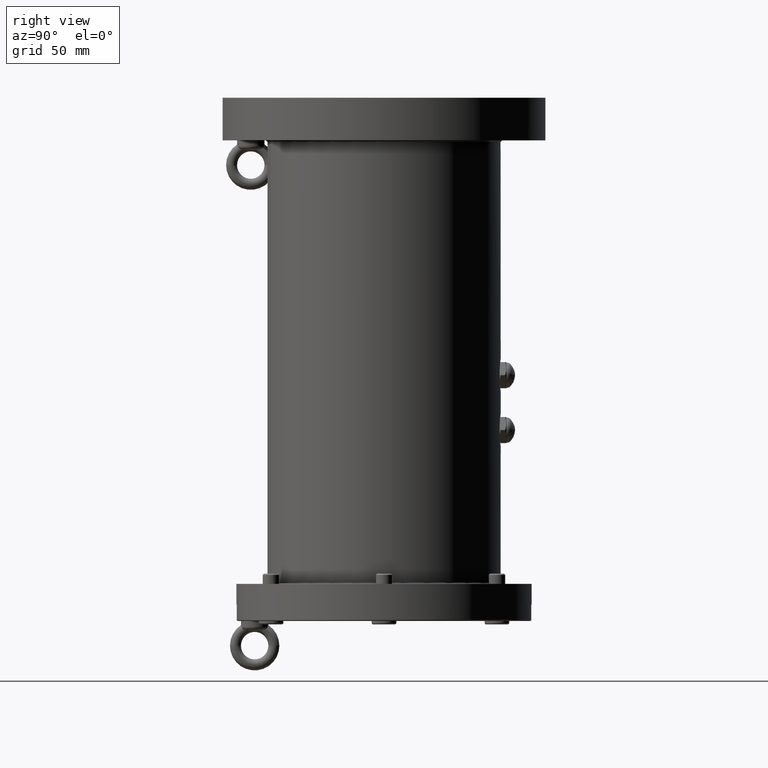
[diagram: clean part render]
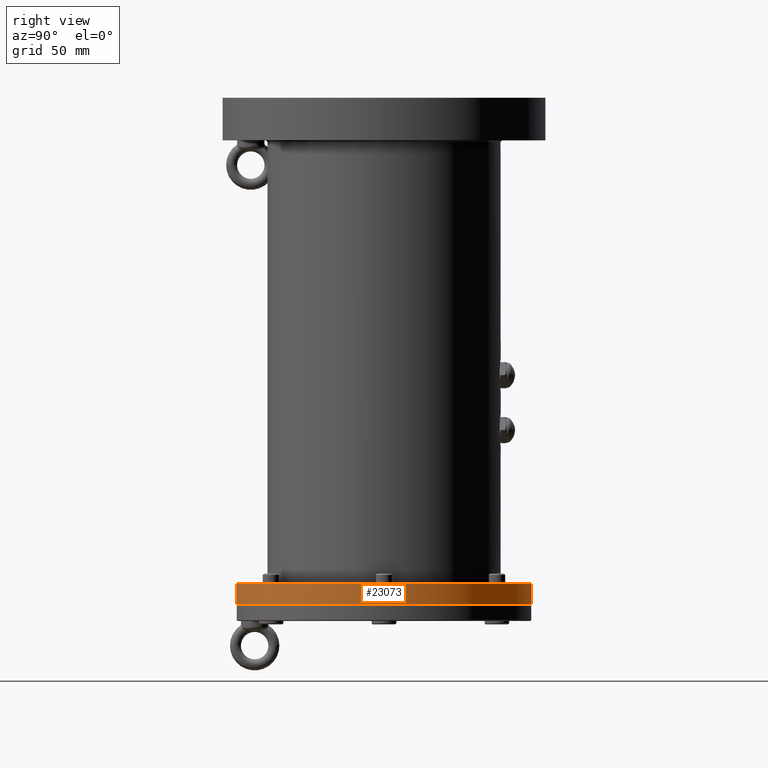
[diagram: same view with one face highlighted and labeled with its STEP entity id]
A machine part, right view. The second image highlights one B-rep face of the part: STEP entity #23073.
In plain terms, the highlighted cylindrical surface (partial cylindrical patch) has radius 107.5 mm, axis along (0, 0, 1).
Its self-contained STEP definition (entity closure, byte-faithful):
#639 = VERTEX_POINT ( 'NONE', #8654 ) ;
#4944 = LINE ( 'NONE', #5308, #8656 ) ;
#5308 = CARTESIAN_POINT ( 'NONE',  ( 1.316495309083404700E-014, 107.5000000000000000, -263.6178635562765200 ) ) ;
#5416 = CIRCLE ( 'NONE', #8707, 107.5000000000000000 ) ;
#8193 = DIRECTION ( 'NONE',  ( 0.0000000000000000000, -1.000000000000000000, 0.0000000000000000000 ) ) ;
#8654 = CARTESIAN_POINT ( 'NONE',  ( 1.316495309083404700E-014, 107.5000000000000000, -363.0000000000000000 ) ) ;
#8656 = VECTOR ( 'NONE', #32686, 1000.000000000000000 ) ;
#8707 = AXIS2_PLACEMENT_3D ( 'NONE', #42615, #25738, #8193 ) ;
#9804 = EDGE_CURVE ( 'NONE', #34754, #18417, #5416, .T. ) ;
#10080 = CARTESIAN_POINT ( 'NONE',  ( 0.0000000000000000000, 0.0000000000000000000, -263.6178635562765200 ) ) ;
#10216 = LINE ( 'NONE', #34065, #11288 ) ;
#11288 = VECTOR ( 'NONE', #13717, 1000.000000000000000 ) ;
#11555 = EDGE_LOOP ( 'NONE', ( #34619, #31700, #28252, #41774 ) ) ;
#12187 = AXIS2_PLACEMENT_3D ( 'NONE', #10080, #43620, #19705 ) ;
#13717 = DIRECTION ( 'NONE',  ( 0.0000000000000000000, 0.0000000000000000000, 1.000000000000000000 ) ) ;
#13912 = CYLINDRICAL_SURFACE ( 'NONE', #12187, 107.5000000000000000 ) ;
#14653 = CARTESIAN_POINT ( 'NONE',  ( 0.0000000000000000000, -107.5000000000000000, -348.0000000000000000 ) ) ;
#17202 = VERTEX_POINT ( 'NONE', #38500 ) ;
#17235 = DIRECTION ( 'NONE',  ( 0.0000000000000000000, 0.0000000000000000000, 1.000000000000000000 ) ) ;
#18417 = VERTEX_POINT ( 'NONE', #34996 ) ;
#19705 = DIRECTION ( 'NONE',  ( 0.0000000000000000000, -1.000000000000000000, 0.0000000000000000000 ) ) ;
#23073 = ADVANCED_FACE ( 'NONE', ( #33183 ), #13912, .T. ) ;
#25738 = DIRECTION ( 'NONE',  ( 0.0000000000000000000, 0.0000000000000000000, 1.000000000000000000 ) ) ;
#28058 = AXIS2_PLACEMENT_3D ( 'NONE', #34262, #17235, #37993 ) ;
#28252 = ORIENTED_EDGE ( 'NONE', *, *, #9804, .F. ) ;
#30403 = EDGE_CURVE ( 'NONE', #17202, #639, #37251, .T. ) ;
#31700 = ORIENTED_EDGE ( 'NONE', *, *, #33612, .T. ) ;
#32686 = DIRECTION ( 'NONE',  ( 0.0000000000000000000, 0.0000000000000000000, 1.000000000000000000 ) ) ;
#33183 = FACE_OUTER_BOUND ( 'NONE', #11555, .T. ) ;
#33612 = EDGE_CURVE ( 'NONE', #639, #18417, #4944, .T. ) ;
#34065 = CARTESIAN_POINT ( 'NONE',  ( 0.0000000000000000000, -107.5000000000000000, -263.6178635562765200 ) ) ;
#34262 = CARTESIAN_POINT ( 'NONE',  ( 0.0000000000000000000, 0.0000000000000000000, -363.0000000000000000 ) ) ;
#34619 = ORIENTED_EDGE ( 'NONE', *, *, #30403, .T. ) ;
#34754 = VERTEX_POINT ( 'NONE', #14653 ) ;
#34996 = CARTESIAN_POINT ( 'NONE',  ( 1.316495309083404700E-014, 107.5000000000000000, -348.0000000000000000 ) ) ;
#37251 = CIRCLE ( 'NONE', #28058, 107.5000000000000000 ) ;
#37993 = DIRECTION ( 'NONE',  ( 0.0000000000000000000, -1.000000000000000000, 0.0000000000000000000 ) ) ;
#38500 = CARTESIAN_POINT ( 'NONE',  ( 0.0000000000000000000, -107.5000000000000000, -363.0000000000000000 ) ) ;
#39641 = EDGE_CURVE ( 'NONE', #17202, #34754, #10216, .T. ) ;
#41774 = ORIENTED_EDGE ( 'NONE', *, *, #39641, .F. ) ;
#42615 = CARTESIAN_POINT ( 'NONE',  ( 0.0000000000000000000, 0.0000000000000000000, -348.0000000000000000 ) ) ;
#43620 = DIRECTION ( 'NONE',  ( 0.0000000000000000000, 0.0000000000000000000, 1.000000000000000000 ) ) ;